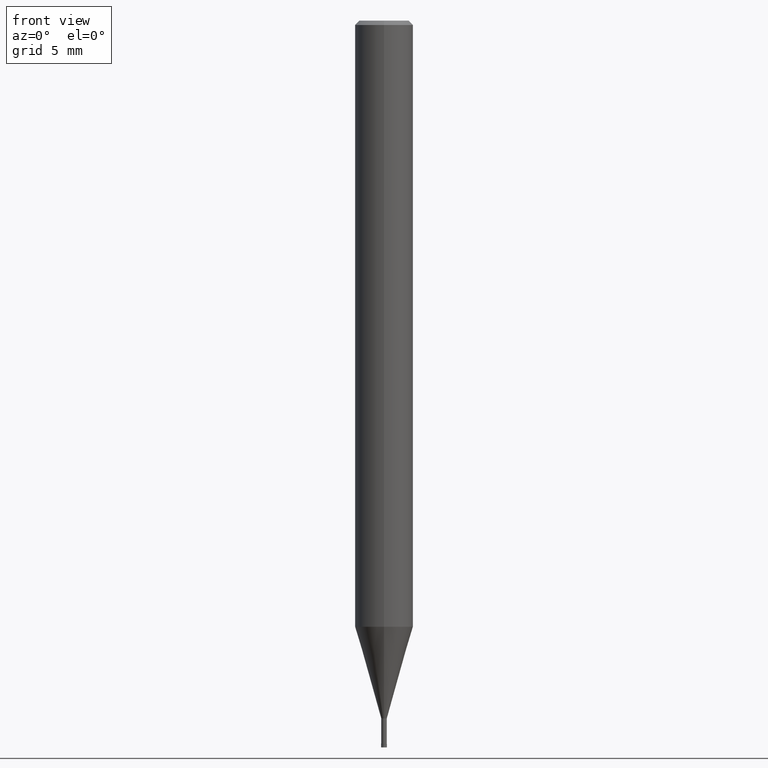
[diagram: clean part render]
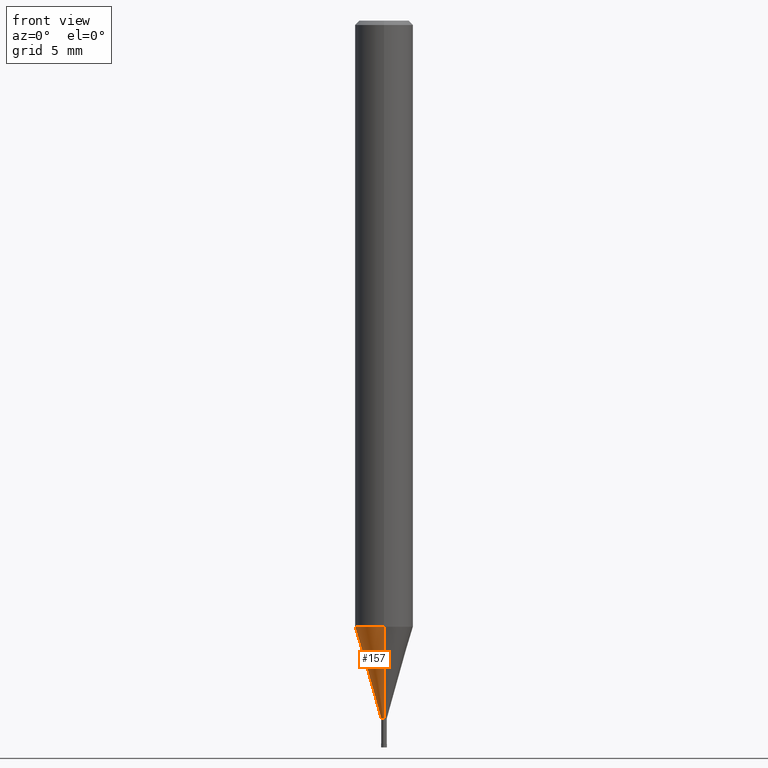
[diagram: same view with one face highlighted and labeled with its STEP entity id]
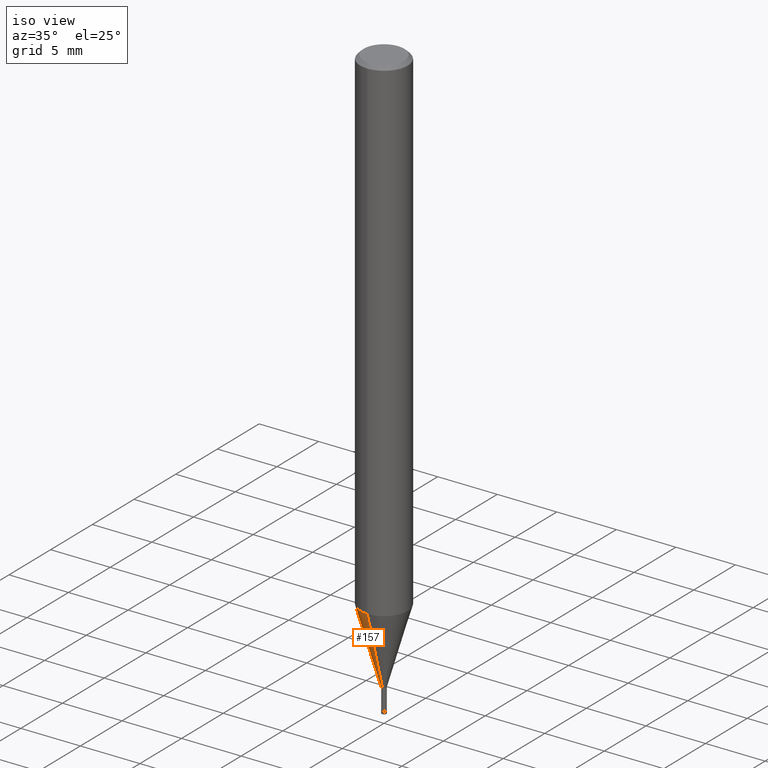
[diagram: same view with one face highlighted and labeled with its STEP entity id]
A machine part, front view. The second image highlights one B-rep face of the part: STEP entity #157.
A second angle (iso view) of the same face is appended — the face is thin or edge-on in the first view.
In plain terms, the highlighted conical surface has half-angle 15.999 deg.
Its self-contained STEP definition (entity closure, byte-faithful):
#151=EDGE_CURVE('',#169,#317,#387,.T.);
#153=EDGE_CURVE('',#209,#291,#389,.T.);
#157=ADVANCED_FACE('',(#394),#395,.T.);
#169=VERTEX_POINT('',#407);
#201=EDGE_CURVE('',#317,#209,#440,.T.);
#209=VERTEX_POINT('',#448);
#291=VERTEX_POINT('',#547);
#317=VERTEX_POINT('',#577);
#355=EDGE_CURVE('',#169,#291,#620,.T.);
#387=LINE('',#648,#649);
#389=LINE('',#652,#653);
#394=FACE_OUTER_BOUND('',#658,.T.);
#395=CONICAL_SURFACE('',#659,1.0962,0.279231732547063);
#407=CARTESIAN_POINT('',(2.35675492793117E-017,-0.19245,-47.99));
#440=CIRCLE('',#717,1.99995);
#448=CARTESIAN_POINT('',(0.0,1.99995,-41.686));
#547=CARTESIAN_POINT('',(0.0,0.19245,-47.99));
#577=CARTESIAN_POINT('',(2.44915147732706E-016,-1.99995,-41.686));
#620=CIRCLE('',#943,0.19245);
#648=CARTESIAN_POINT('',(1.34241348506009E-016,-1.0962,-44.838));
#649=VECTOR('',#957,1.0);
#652=CARTESIAN_POINT('',(-1.34241348506009E-016,1.0962,-44.838));
#653=VECTOR('',#958,1.0);
#658=EDGE_LOOP('',(#968,#969,#970,#971));
#659=AXIS2_PLACEMENT_3D('',#972,#973,#974);
#717=AXIS2_PLACEMENT_3D('',#1014,#1015,#1016);
#943=AXIS2_PLACEMENT_3D('',#1262,#1263,#1264);
#957=DIRECTION('',(3.375225981805E-017,-0.275617219465657,0.961267469715906));
#958=DIRECTION('',(3.375225981805E-017,-0.275617219465657,-0.961267469715906));
#968=ORIENTED_EDGE('',*,*,#153,.T.);
#969=ORIENTED_EDGE('',*,*,#355,.F.);
#970=ORIENTED_EDGE('',*,*,#151,.T.);
#971=ORIENTED_EDGE('',*,*,#201,.T.);
#972=CARTESIAN_POINT('',(0.0,0.0,-44.838));
#973=DIRECTION('',(-0.0,-0.0,1.0));
#974=DIRECTION('',(0.0,1.0,0.0));
#1014=CARTESIAN_POINT('',(0.0,0.0,-41.686));
#1015=DIRECTION('',(0.0,0.0,-1.0));
#1016=DIRECTION('',(0.0,1.0,0.0));
#1262=CARTESIAN_POINT('',(0.0,0.0,-47.99));
#1263=DIRECTION('',(0.0,0.0,-1.0));
#1264=DIRECTION('',(0.0,1.0,0.0));